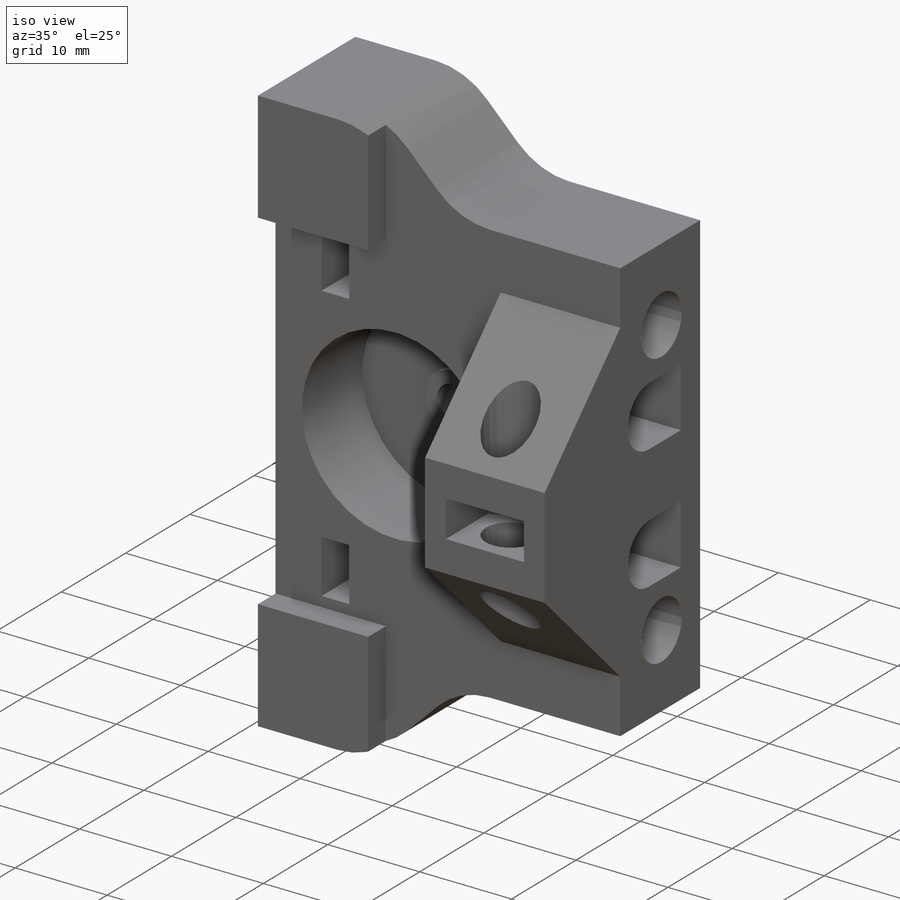
[diagram: iso view]
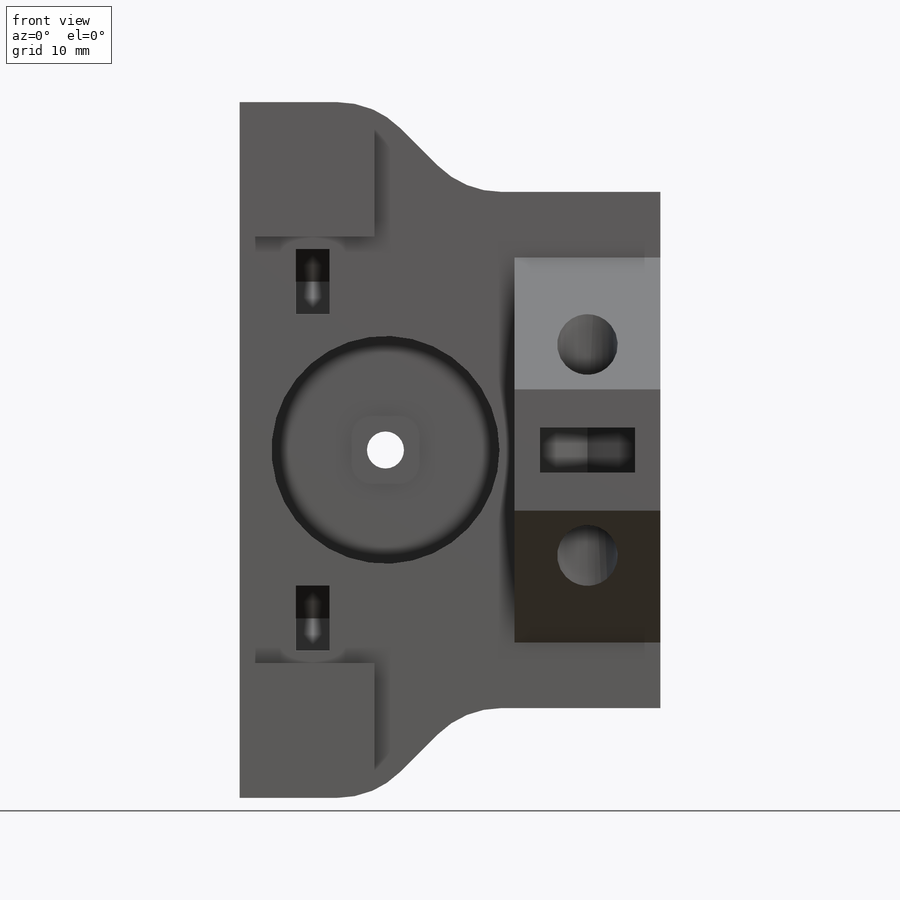
[diagram: front view]
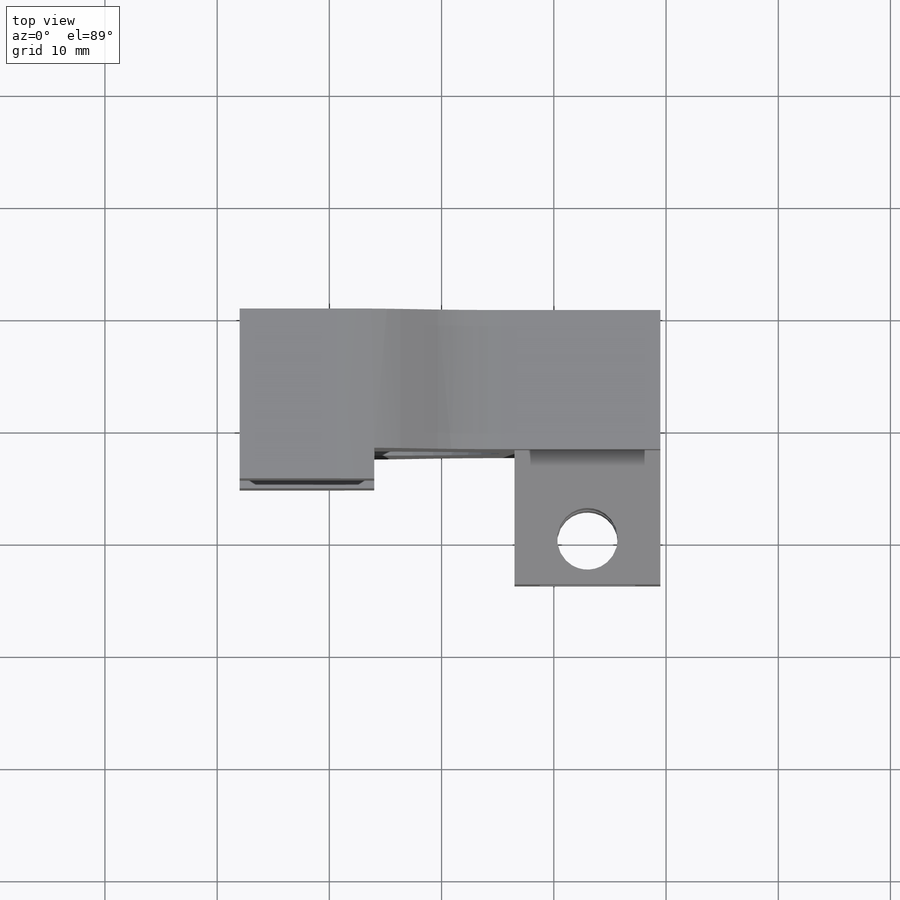
[diagram: top view]
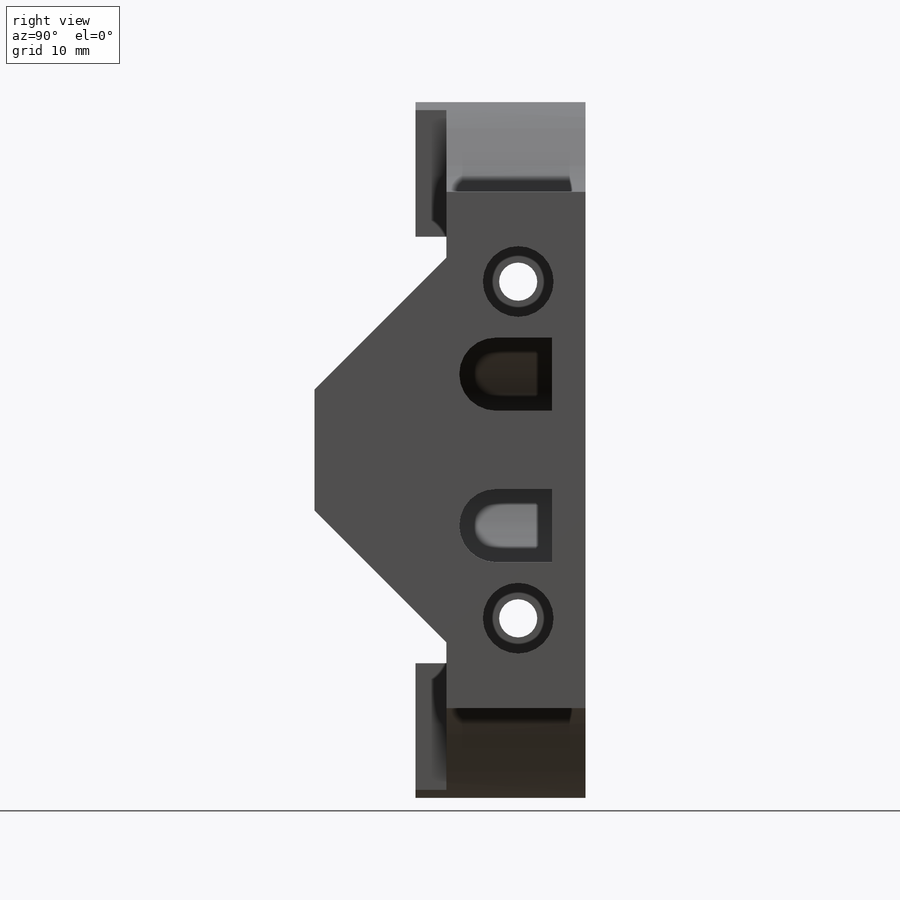
[diagram: right view]
SOLIDWORKS PART (.sldprt)
format: sldprt  version: not decoded by parser v0  size: 613,376 bytes
history: native  units: mm
features: sketch x18, cut_extrude x12, extrude x4, plane x3, chamfer x3, mirror x2, material x1, hole x1, fillet x1 (+16 scaffold rows collapsed)
feature tree (61):
  scaffold x16  (default folders/planes/origin — collapsed)
  material  "ABS"
  sketch  "Sketch1"  dims[c1.D8=6.5mm c1.D11=14.0mm c1.D1=46.0mm c1.D2=59.5mm c1.D3=15.0mm c1.D4=20.0mm c1.D5=15.0mm c1.D6=20.0mm c1.D7=23.0mm c1.D9=25.0mm c1.D10=8.0mm c1.D12=5.0mm c1.D13=15.0mm c1.D14=5.2mm c1.D15=5.2mm c1.D16=5.2mm c1.D17=3.0mm c1.D18=7.0mm c2.D17=5.0mm c2.D19=5.0mm c2.D3=35.0mm c2.D4=30.0mm c2.D6=6.0mm c2.D14=2.0mm c3.D3=8.0mm c3.D4=12.0mm c3.D5=22.0mm c3.D6=8.0mm c3.D1=37.5mm c3.D2=46.0mm c4.D5=5.0mm]
  extrude  "Boss-Extrude1"  Depth=12.4mm
  sketch  "Sketch23"  dims[D1=12.0mm]
  extrude  "Boss-Extrude3"  Depth=2.75mm
  sketch  "Sketch4"  dims[c1.D1=6.3mm c1.D2=23.0mm c1.D3=15.0mm c1.D4=15.0mm c1.D5=7.0mm c2.D2=6.0mm]
  cut_extrude  "Cut-Extrude10"  Depth=8mm
  plane  "Plane1"  Offset=6mm
  sketch  "Sketch10"  dims[c1.D1=23.0mm c1.D2=8.0mm c1.D3=5.8mm c1.D4=20.0mm c2.D1=8.0mm]
  cut_extrude  "Cut-Extrude8"  Depth=1.4mm
  sketch  "Sketch11"  dims[D1=3.5mm]
  cut_extrude  "Cut-Extrude9"  [1 undecoded]
  sketch  "Sketch13"  dims[D1=8.2mm D2=10.0mm D3=1.0mm D4=2.0mm]
  cut_extrude  "Cut-Extrude11"  Depth=1mm
  sketch  "Sketch14"  dims[D1=0.9mm D2=0.9mm]
  cut_extrude  "Cut-Extrude12"  Depth=4mm
  hole  "CBORE for M3 Pan Head Screw1"  Diameter=3.4mm Depth=15.150025mm
  sketch  "Sketch17"
  sketch  "Sketch16"  dims[hole-wizard template sketch: 42 standard entries collapsed; hole parameters kept: c12.Thru Hole Depth=~15.150025mm c12.C'Bore Dia.=7.0mm c12.C'Bore Depth=1.0mm]
  chamfer  "Chamfer1"  Distance=8mm Angle=45deg
  fillet  "Fillet1"  Radius=8mm
  plane  "Plane2"
  mirror  "Mirror3"
  sketch  "Sketch18"  dims[D1=13.0mm D2=10.0mm D3=5.0mm]
  extrude  "Boss-Extrude2"  Depth=11.75mm
  chamfer  "Chamfer2"  Distance=12.15mm Angle=45deg
  sketch  "Sketch19"  dims[D2=5.4mm D1=7.75mm]
  cut_extrude  "Cut-Extrude14"  [1 undecoded]
  sketch  "Sketch20"  dims[D1=8.5mm]
  cut_extrude  "Cut-Extrude15"  Depth=2mm
  sketch  "Sketch21"  dims[c1.D1=20.3mm c1.D2=20.3mm c2.D1=7.4mm c2.D2=13.0mm]
  cut_extrude  "Cut-Extrude16"  Depth=3mm
  sketch  "Sketch24"  dims[D1=3.5mm D2=6.5mm D3=5.0mm D4=3.0mm]
  cut_extrude  "Cut-Extrude17"  [1 undecoded]
  mirror  "Mirror4"
  chamfer  "Chamfer3"  Distance=1mm Angle=45deg
  plane  "Plane3"  Offset=5mm
  sketch  "Sketch25"  dims[D1=5.8mm]
  cut_extrude  "Cut-Extrude18"  Depth=3mm
  sketch  "Sketch26"  dims[D1=3.4mm]
  cut_extrude  "Cut-Extrude19"  [1 undecoded]
  sketch  "Sketch27"  dims[D1=6.0mm]
  extrude  "Boss-Extrude4"  Depth=0.5mm
  sketch  "Sketch5"  dims[c1.D1=3.3mm c1.D7=3.5mm c1.D2=13.0mm c1.D3=13.0mm c1.D4=26.0mm c1.D5=12.0mm c1.D6=20.0mm c2.D5=6.0mm c2.D6=26.0mm c3.D6=90.0deg c4.D6=26.0mm c5.D6=135.0deg c5.D2=13.0mm]
  cut_extrude  "Cut-Extrude3"  [1 undecoded]
decode coverage: 33 of 41 modeling features carry decoded parameters
note: ~ marks probable driven/reference dimensions
note: 5 parameter values undecoded
summary: no parameter record found for 5 features
note: suppression state not decoded; provenance and decode notes live in map.json
